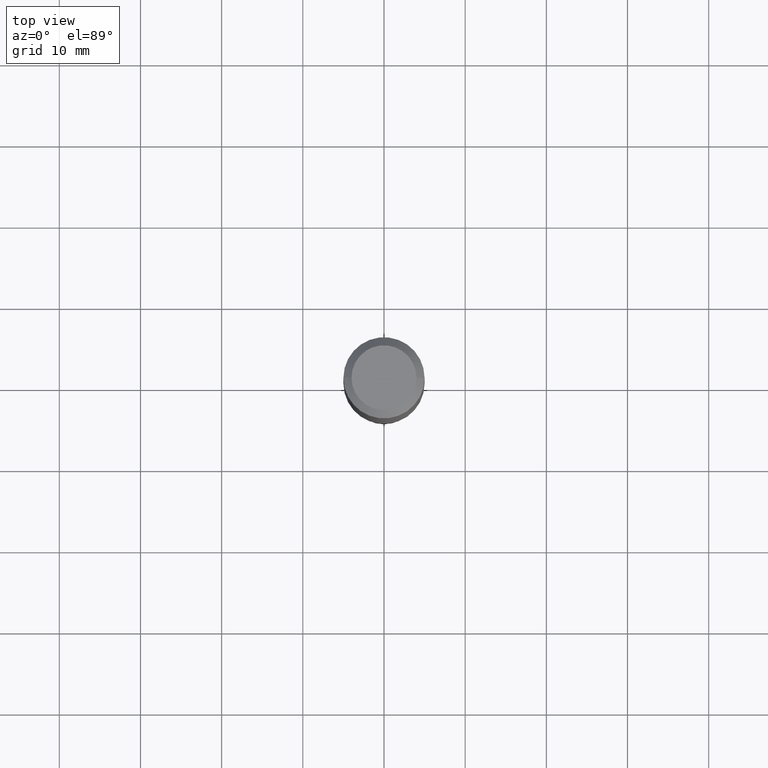
[diagram: clean part render]
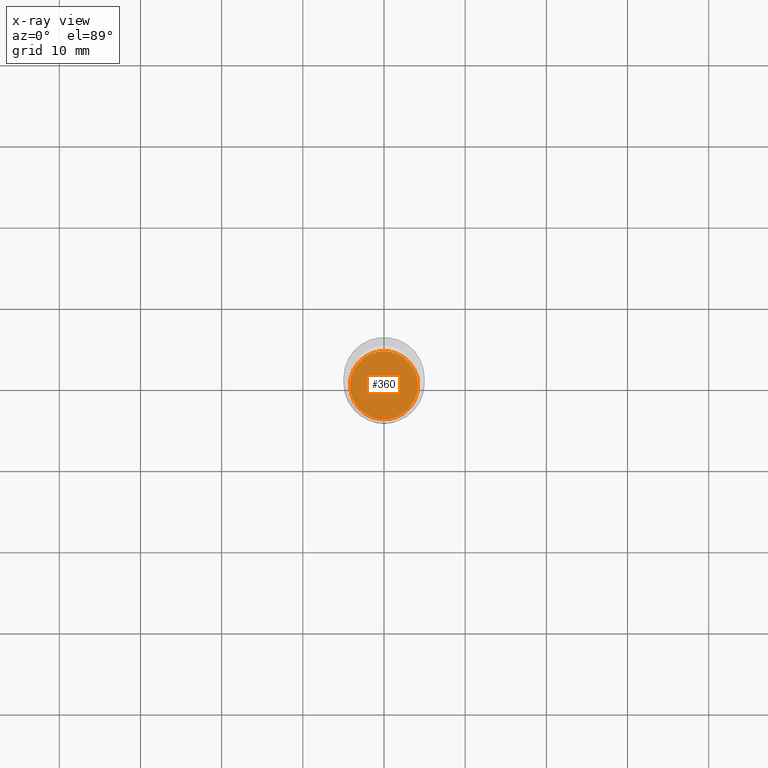
[diagram: x-ray — body ghosted, one internal face saturated and labeled with its STEP entity id]
A machine part, top view, then the same camera in x-ray: the body is ghosted and one INTERNAL B-rep face — a face not visible from any outside direction — is saturated and labeled: STEP entity #360.
In plain terms, the highlighted planar face has unit normal (-0, 0, 1).
Its self-contained STEP definition (entity closure, byte-faithful):
#36 = DIRECTION ( 'NONE',  ( 1.000000000000000000, -6.982962677686265133E-15, 0.000000000000000000 ) ) ;
#38 = EDGE_CURVE ( 'NONE', #164, #465, #104, .T. ) ;
#45 = DIRECTION ( 'NONE',  ( -2.445468806185136597E-29, 3.491481338843145583E-15, 1.000000000000000000 ) ) ;
#93 = EDGE_CURVE ( 'NONE', #465, #164, #95, .T. ) ;
#95 = CIRCLE ( 'NONE', #142, 0.1655000000000000082 ) ;
#96 = AXIS2_PLACEMENT_3D ( 'NONE', #319, #171, #427 ) ;
#104 = CIRCLE ( 'NONE', #458, 0.1655000000000000082 ) ;
#117 = EDGE_LOOP ( 'NONE', ( #263, #353 ) ) ;
#133 = PLANE ( 'NONE',  #96 ) ;
#142 = AXIS2_PLACEMENT_3D ( 'NONE', #454, #162, #36 ) ;
#162 = DIRECTION ( 'NONE',  ( -2.445468806185136597E-29, 3.491481338843145583E-15, 1.000000000000000000 ) ) ;
#164 = VERTEX_POINT ( 'NONE', #460 ) ;
#171 = DIRECTION ( 'NONE',  ( -2.438088387897960049E-29, 3.491481338843145188E-15, 1.000000000000000000 ) ) ;
#235 = CARTESIAN_POINT ( 'NONE',  ( 5.198822135068982087E-29, -7.422540178246643119E-15, -2.125899999999999679 ) ) ;
#263 = ORIENTED_EDGE ( 'NONE', *, *, #38, .F. ) ;
#319 = CARTESIAN_POINT ( 'NONE',  ( 5.198822135068982087E-29, -7.422540178246643119E-15, -2.125899999999999679 ) ) ;
#353 = ORIENTED_EDGE ( 'NONE', *, *, #93, .F. ) ;
#360 = ADVANCED_FACE ( 'NONE', ( #451 ), #133, .F. ) ;
#420 = CARTESIAN_POINT ( 'NONE',  ( -0.1655000000000000082, -6.243942723389565460E-15, -2.125899999999999679 ) ) ;
#427 = DIRECTION ( 'NONE',  ( 1.000000000000000000, -6.982962677686265922E-15, 4.876176775795935793E-29 ) ) ;
#451 = FACE_OUTER_BOUND ( 'NONE', #117, .T. ) ;
#454 = CARTESIAN_POINT ( 'NONE',  ( 5.198822135068982087E-29, -7.422540178246643119E-15, -2.125899999999999679 ) ) ;
#458 = AXIS2_PLACEMENT_3D ( 'NONE', #235, #45, #488 ) ;
#460 = CARTESIAN_POINT ( 'NONE',  ( 0.1655000000000000082, -8.578220501403719502E-15, -2.125899999999999679 ) ) ;
#465 = VERTEX_POINT ( 'NONE', #420 ) ;
#488 = DIRECTION ( 'NONE',  ( 1.000000000000000000, -6.982962677686265133E-15, 0.000000000000000000 ) ) ;